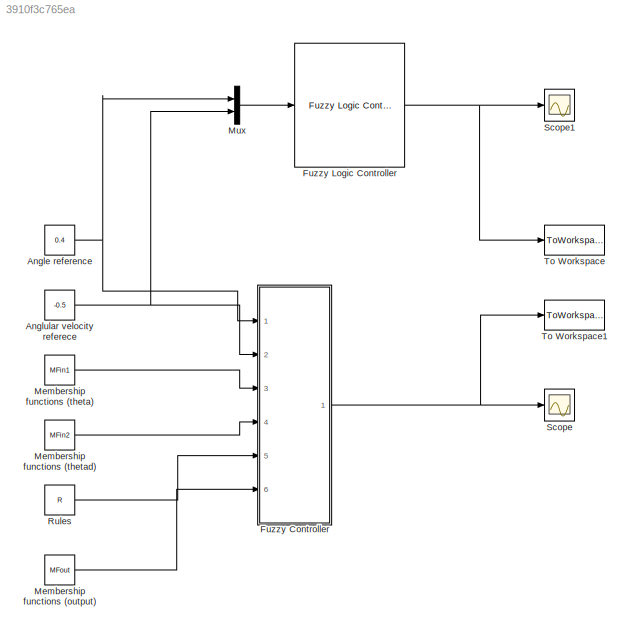
MODEL slx_3910f3c765ea
KIND model
BLOCK [Constant] Angle reference 
  Value = 0.4
BLOCK [Constant] Anglular velocity referece
  Value = -0.5
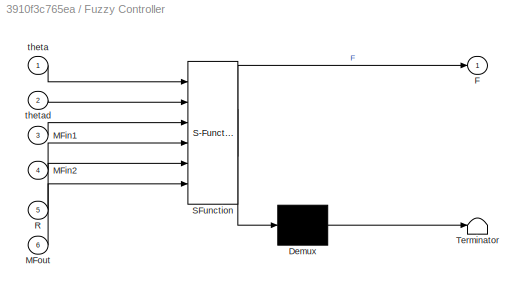
BLOCK [SubSystem] Fuzzy Controller
  ErrorFcn = Stateflow.Translate.translate
  FunctionWithSeparateData = off
  MaskHideContents = off
  MinAlgLoopOccurrences = off
  Opaque = off
  PermitHierarchicalResolution = ExplicitOnly
  Ports = [6, 1]
  PropExecContextOutsideSubsystem = off
  RTWSystemCode = Auto
  RequestExecContextInheritance = off
  SFBlockType = MATLAB Function
  TreatAsAtomicUnit = on
BLOCK [Demux] Fuzzy Controller/ Demux 
  Outputs = 1
  Ports = [1, 1]
BLOCK [S-Function] Fuzzy Controller/ SFunction 
  EnableBusSupport = on
  FunctionName = sf_sfun
  PortCounts = [6 2]
  Ports = [6, 2]
  Tag = Stateflow S-Function testmodel 2
BLOCK [Terminator] Fuzzy Controller/ Terminator 
BLOCK [Outport] Fuzzy Controller/F
  IconDisplay = Port number
BLOCK [Inport] Fuzzy Controller/MFin1
  IconDisplay = Port number
  Port = 3
BLOCK [Inport] Fuzzy Controller/MFin2
  IconDisplay = Port number
  Port = 4
BLOCK [Inport] Fuzzy Controller/MFout
  IconDisplay = Port number
  Port = 6
BLOCK [Inport] Fuzzy Controller/R
  IconDisplay = Port number
  Port = 5
BLOCK [Inport] Fuzzy Controller/theta
  IconDisplay = Port number
BLOCK [Inport] Fuzzy Controller/thetad
  IconDisplay = Port number
  Port = 2
BLOCK [Reference] Fuzzy Logic  Controller  REF=fuzblock/Fuzzy Logic   (lib defined in mdl_858b3b3e7478)
Controller
  Ports = [1, 1]
  SourceBlock = fuzblock/Fuzzy Logic \nController
  SourceType = FIS
  fis = compare
BLOCK [Constant] Membership functions (output)
  Value = MFout
BLOCK [Constant] Membership functions (theta)
  Value = MFin1
BLOCK [Constant] Membership functions (thetad)
  Value = MFin2
BLOCK [Mux] Mux
  DisplayOption = bar
  Inputs = 2
  Ports = [2, 1]
BLOCK [Constant] Rules
  Value = R
BLOCK [Scope] Scope
  DataFormat = StructureWithTime
  Floating = off
  NumInputPorts = 1
  Ports = [1]
  SampleTime = 0
  ShowLegends = off
BLOCK [Scope] Scope1
  DataFormat = StructureWithTime
  Floating = off
  NumInputPorts = 1
  Ports = [1]
  SampleTime = 0
  SaveName = ScopeData1
  ShowLegends = off
BLOCK [ToWorkspace] To Workspace
  MaxDataPoints = inf
  Ports = [1]
  SampleTime = -1
  VariableName = correct
BLOCK [ToWorkspace] To Workspace1
  MaxDataPoints = inf
  Ports = [1]
  SampleTime = -1
  VariableName = design
NET Angle reference :1 -> Fuzzy Controller:1, Mux:1
NET Anglular velocity referece:1 -> Fuzzy Controller:2, Mux:2
NET Fuzzy Controller:1 -> Scope:1, To Workspace1:1
NET Fuzzy Logic  Controller:1 -> Scope1:1, To Workspace:1
LINE Membership functions (output):1 -> Fuzzy Controller:6
LINE Membership functions (theta):1 -> Fuzzy Controller:3
LINE Membership functions (thetad):1 -> Fuzzy Controller:4
LINE Mux:1 -> Fuzzy Logic  Controller:1
LINE Rules:1 -> Fuzzy Controller:5
note: NET lines group one-source signal fan-out (src -> all destinations, sorted); 1:1 wires keep LINE
